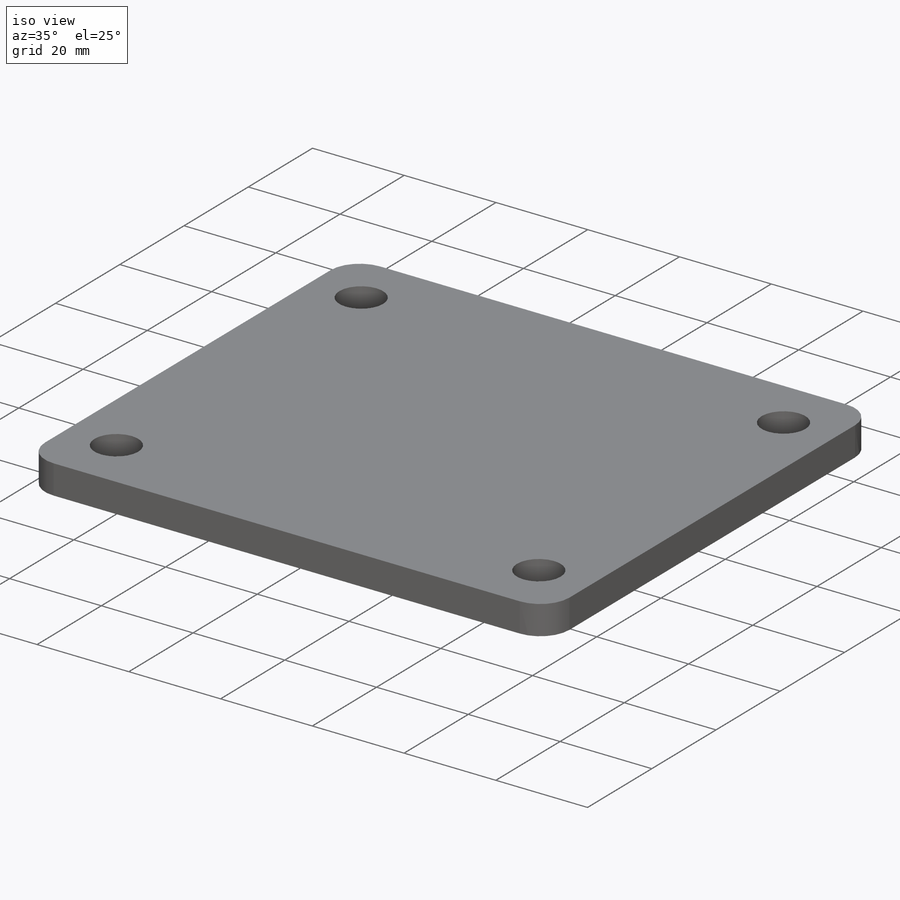
[diagram: iso view]
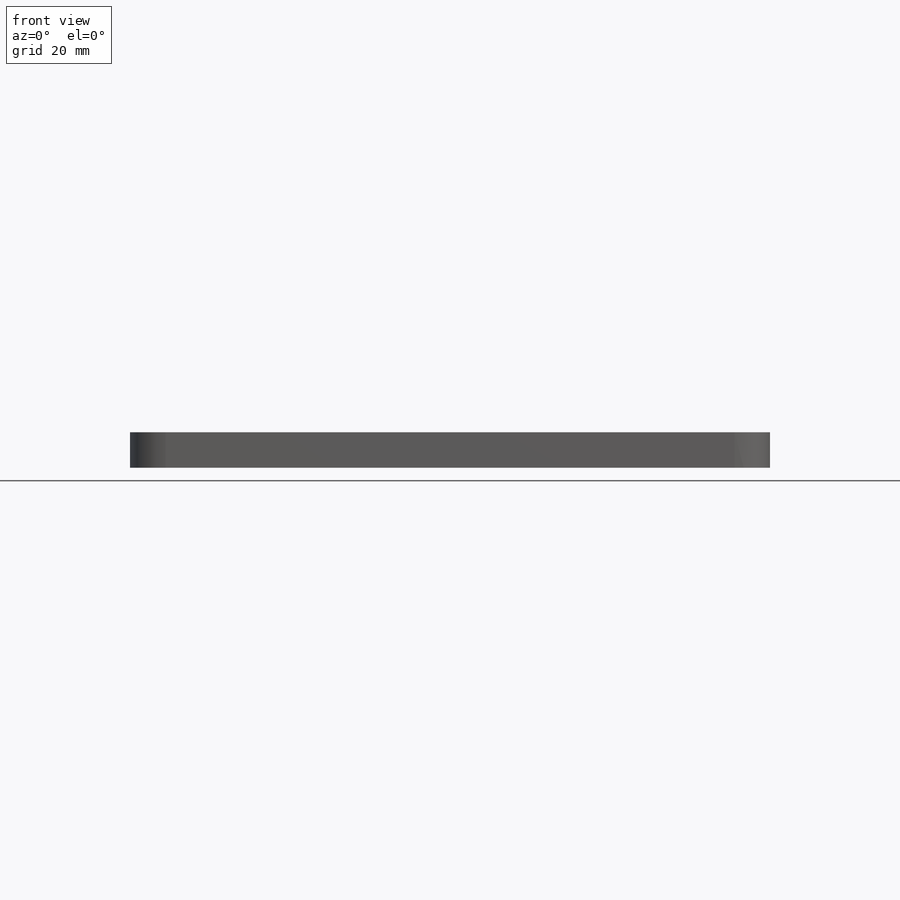
[diagram: front view]
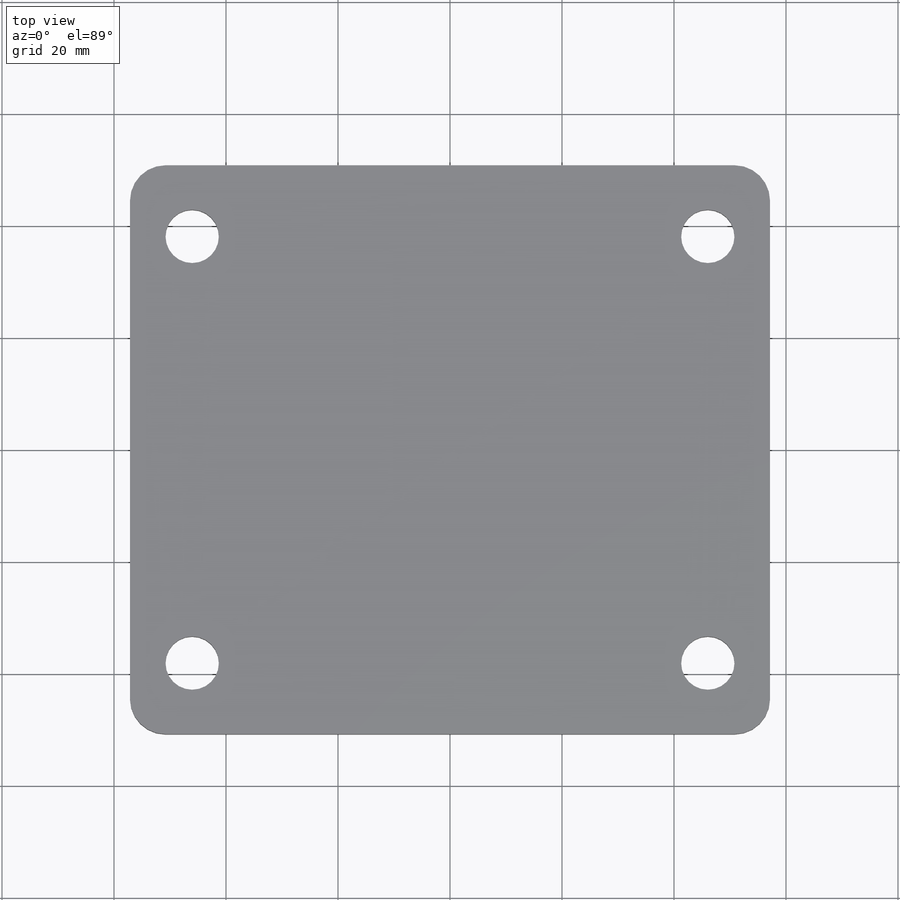
[diagram: top view]
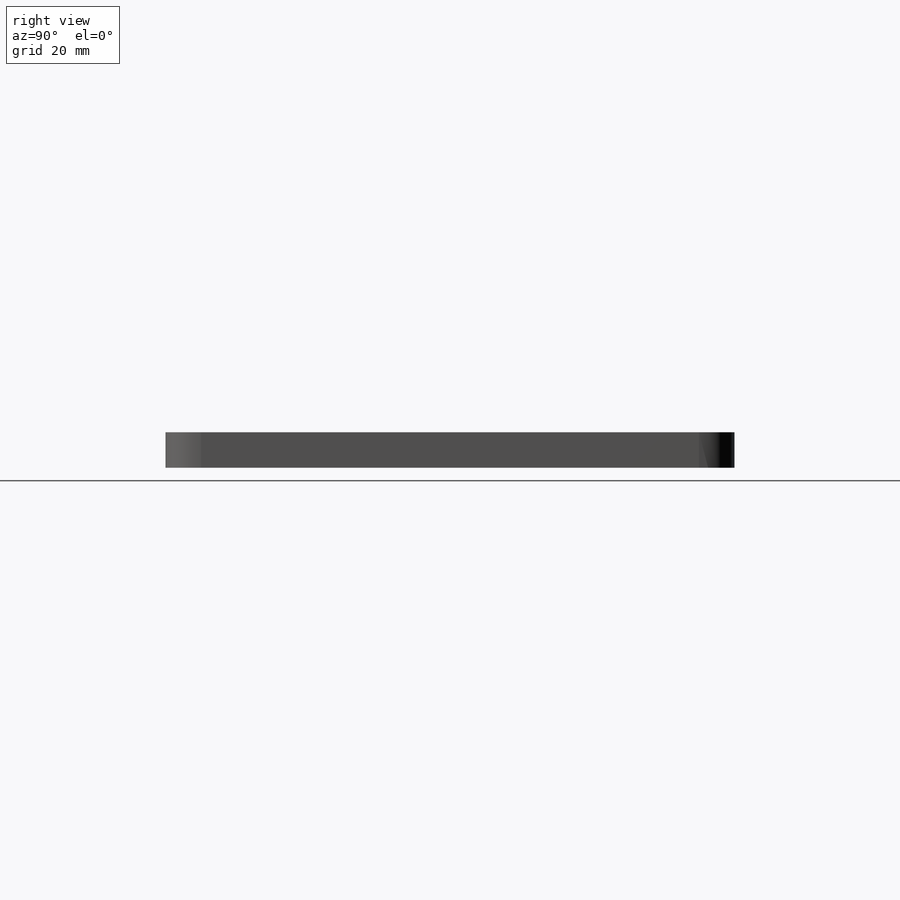
[diagram: right view]
SOLIDWORKS PART (.sldprt)
format: sldprt  version: not decoded by parser v0  size: 242,688 bytes
history: native  units: mm
features: sketch x3, material x1, extrude x1, fillet x1, hole x1 (+12 scaffold rows collapsed)
feature tree (19):
  scaffold x12  (default folders/planes/origin — collapsed)
  material  "5052-H32"
  sketch  "Sketch1"  dims[D1=101.6mm D2=114.3mm]
  extrude  "Boss-Extrude1"  Depth=6.35mm
  fillet  "Fillet1"  Radius=6.35mm
  hole  "3/8 (0.375) Diameter Hole1"  Diameter=9.525mm Depth=6.35mm
  sketch  "3DSketch1"  dims[c1.D1=~61.502609mm c1.D3=76.2mm c1.D2=~97.144283mm c2.D1=~91.320337mm c2.D2=~68.001521mm c2.D3=76.2mm c3.D1=92.075mm c3.D2=76.2mm c3.D3=76.2mm c4.D1=~63.491912mm c4.D2=~89.518623mm c4.D3=92.075mm c5.D1=76.2mm c5.D2=92.075mm c5.D3=12.7mm c5.D4=11.1125mm]
  sketch  "Sketch2"  dims[hole-wizard template sketch: 61 standard entries collapsed; hole parameters above]
decode coverage: 6 of 6 modeling features carry decoded parameters
note: ~ marks probable driven/reference dimensions
note: suppression state not decoded; provenance and decode notes live in map.json
